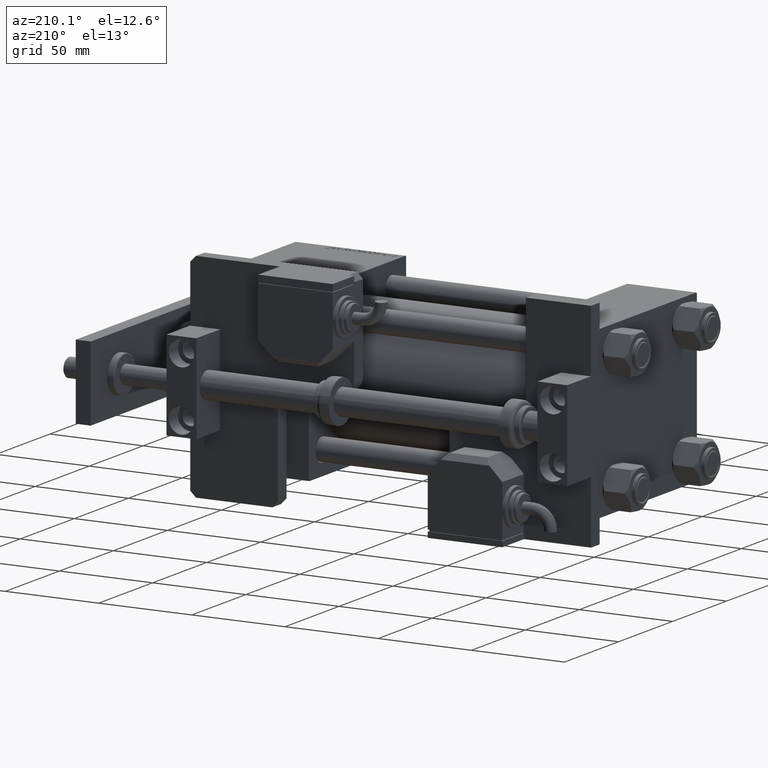
[diagram: clean part render]
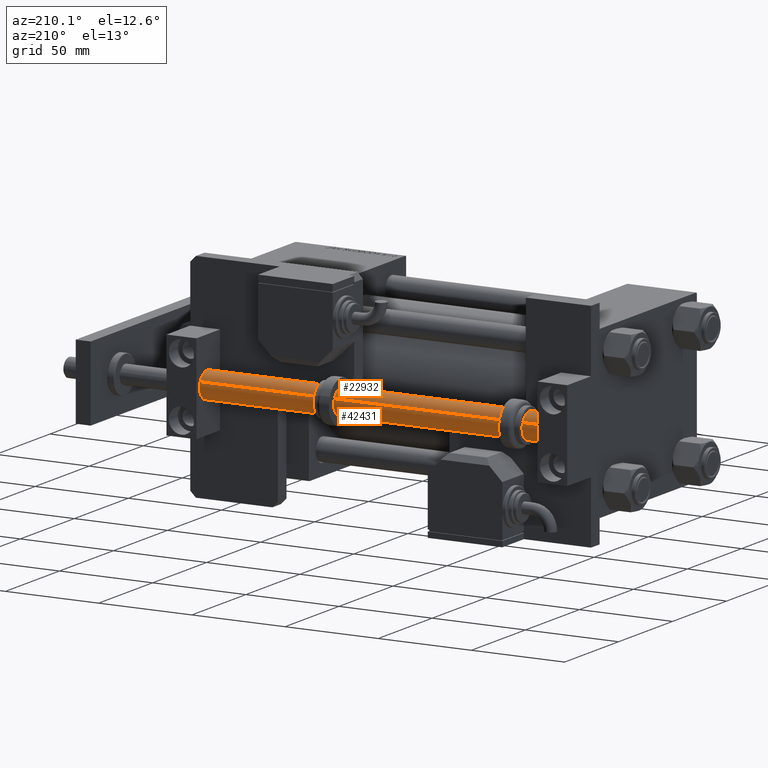
[diagram: same view with one multi-face feature highlighted, each face labeled with its STEP entity id]
A machine part, auxiliary view. The highlighted faces form ONE feature: a constant-radius fillet chain: 2 tangent blend faces with common blend radius 7 mm. The faces share edges in the B-rep.
Their STEP definitions:
[1] entity #22932 (Cylinder):
#1186 = ORIENTED_EDGE ( 'NONE', *, *, #8624, .F. ) ;
#4401 = DIRECTION ( 'NONE',  ( 1.000000000000000000, 0.000000000000000000, 0.000000000000000000 ) ) ;
#4670 = CARTESIAN_POINT ( 'NONE',  ( 0.000000000000000000, 0.000000000000000000, 215.0000000000000000 ) ) ;
#6527 = AXIS2_PLACEMENT_3D ( 'NONE', #4670, #39169, #4401 ) ;
#6586 = CARTESIAN_POINT ( 'NONE',  ( 0.000000000000000000, 0.000000000000000000, 215.0000000000000000 ) ) ;
#6798 = CARTESIAN_POINT ( 'NONE',  ( -7.000000000000000000, 0.000000000000000000, 215.0000000000000000 ) ) ;
#7639 = DIRECTION ( 'NONE',  ( -0.000000000000000000, -0.000000000000000000, -1.000000000000000000 ) ) ;
#7795 = CARTESIAN_POINT ( 'NONE',  ( 7.000000000000000000, 8.572527594031473190E-16, 0.2999999999999947153 ) ) ;
#8116 = ORIENTED_EDGE ( 'NONE', *, *, #53200, .F. ) ;
#8624 = EDGE_CURVE ( 'NONE', #32189, #38328, #29581, .T. ) ;
#9934 = VERTEX_POINT ( 'NONE', #26661 ) ;
#11297 = VERTEX_POINT ( 'NONE', #37730 ) ;
#12396 = CIRCLE ( 'NONE', #22194, 7.000000000000000000 ) ;
#15632 = DIRECTION ( 'NONE',  ( -1.000000000000000000, 0.000000000000000000, 0.000000000000000000 ) ) ;
#19582 = CYLINDRICAL_SURFACE ( 'NONE', #38603, 7.000000000000000000 ) ;
#22194 = AXIS2_PLACEMENT_3D ( 'NONE', #50959, #26334, #38511 ) ;
#22932 = ADVANCED_FACE ( 'NONE', ( #44493 ), #19582, .T. ) ;
#23127 = EDGE_CURVE ( 'NONE', #11297, #38328, #12396, .T. ) ;
#23569 = ORIENTED_EDGE ( 'NONE', *, *, #55455, .T. ) ;
#26334 = DIRECTION ( 'NONE',  ( -0.000000000000000000, -0.000000000000000000, 1.000000000000000000 ) ) ;
#26661 = CARTESIAN_POINT ( 'NONE',  ( -7.000000000000000000, 0.000000000000000000, 215.0000000000000000 ) ) ;
#28075 = DIRECTION ( 'NONE',  ( -0.000000000000000000, -0.000000000000000000, -1.000000000000000000 ) ) ;
#29016 = EDGE_LOOP ( 'NONE', ( #1186, #8116, #23569, #45002 ) ) ;
#29581 = LINE ( 'NONE', #38622, #30062 ) ;
#30062 = VECTOR ( 'NONE', #47119, 1000.000000000000000 ) ;
#30127 = VECTOR ( 'NONE', #7639, 1000.000000000000000 ) ;
#30911 = CIRCLE ( 'NONE', #6527, 7.000000000000000000 ) ;
#32189 = VERTEX_POINT ( 'NONE', #32299 ) ;
#32299 = CARTESIAN_POINT ( 'NONE',  ( 7.000000000000000000, 8.572527594031473190E-16, 215.0000000000000000 ) ) ;
#37730 = CARTESIAN_POINT ( 'NONE',  ( -7.000000000000000000, 0.000000000000000000, 0.2999999999999947153 ) ) ;
#38328 = VERTEX_POINT ( 'NONE', #7795 ) ;
#38511 = DIRECTION ( 'NONE',  ( 1.000000000000000000, 0.000000000000000000, 0.000000000000000000 ) ) ;
#38603 = AXIS2_PLACEMENT_3D ( 'NONE', #6586, #28075, #15632 ) ;
#38622 = CARTESIAN_POINT ( 'NONE',  ( 7.000000000000000000, 8.572527594031473190E-16, 215.0000000000000000 ) ) ;
#39169 = DIRECTION ( 'NONE',  ( 0.000000000000000000, 0.000000000000000000, 1.000000000000000000 ) ) ;
#44493 = FACE_OUTER_BOUND ( 'NONE', #29016, .T. ) ;
#45002 = ORIENTED_EDGE ( 'NONE', *, *, #23127, .T. ) ;
#47119 = DIRECTION ( 'NONE',  ( -0.000000000000000000, -0.000000000000000000, -1.000000000000000000 ) ) ;
#50959 = CARTESIAN_POINT ( 'NONE',  ( 0.000000000000000000, 0.000000000000000000, 0.2999999999999947153 ) ) ;
#53200 = EDGE_CURVE ( 'NONE', #9934, #32189, #30911, .T. ) ;
#54860 = LINE ( 'NONE', #6798, #30127 ) ;
#55455 = EDGE_CURVE ( 'NONE', #9934, #11297, #54860, .T. ) ;
[2] entity #42431 (Cylinder):
#949 = DIRECTION ( 'NONE',  ( -0.000000000000000000, -0.000000000000000000, 1.000000000000000000 ) ) ;
#5158 = CARTESIAN_POINT ( 'NONE',  ( 0.000000000000000000, 0.000000000000000000, 215.0000000000000000 ) ) ;
#5706 = CYLINDRICAL_SURFACE ( 'NONE', #54098, 7.000000000000000000 ) ;
#6798 = CARTESIAN_POINT ( 'NONE',  ( -7.000000000000000000, 0.000000000000000000, 215.0000000000000000 ) ) ;
#7530 = EDGE_CURVE ( 'NONE', #32189, #9934, #15732, .T. ) ;
#7554 = ORIENTED_EDGE ( 'NONE', *, *, #37470, .T. ) ;
#7639 = DIRECTION ( 'NONE',  ( -0.000000000000000000, -0.000000000000000000, -1.000000000000000000 ) ) ;
#7795 = CARTESIAN_POINT ( 'NONE',  ( 7.000000000000000000, 8.572527594031473190E-16, 0.2999999999999947153 ) ) ;
#8624 = EDGE_CURVE ( 'NONE', #32189, #38328, #29581, .T. ) ;
#9934 = VERTEX_POINT ( 'NONE', #26661 ) ;
#10810 = ORIENTED_EDGE ( 'NONE', *, *, #8624, .T. ) ;
#11297 = VERTEX_POINT ( 'NONE', #37730 ) ;
#13630 = CARTESIAN_POINT ( 'NONE',  ( 0.000000000000000000, 0.000000000000000000, 215.0000000000000000 ) ) ;
#13914 = FACE_OUTER_BOUND ( 'NONE', #46817, .T. ) ;
#15061 = ORIENTED_EDGE ( 'NONE', *, *, #7530, .F. ) ;
#15732 = CIRCLE ( 'NONE', #54762, 7.000000000000000000 ) ;
#22950 = DIRECTION ( 'NONE',  ( 0.000000000000000000, 0.000000000000000000, 1.000000000000000000 ) ) ;
#26661 = CARTESIAN_POINT ( 'NONE',  ( -7.000000000000000000, 0.000000000000000000, 215.0000000000000000 ) ) ;
#29581 = LINE ( 'NONE', #38622, #30062 ) ;
#30062 = VECTOR ( 'NONE', #47119, 1000.000000000000000 ) ;
#30127 = VECTOR ( 'NONE', #7639, 1000.000000000000000 ) ;
#31159 = DIRECTION ( 'NONE',  ( -1.000000000000000000, 0.000000000000000000, 0.000000000000000000 ) ) ;
#31326 = AXIS2_PLACEMENT_3D ( 'NONE', #39986, #949, #36296 ) ;
#32189 = VERTEX_POINT ( 'NONE', #32299 ) ;
#32299 = CARTESIAN_POINT ( 'NONE',  ( 7.000000000000000000, 8.572527594031473190E-16, 215.0000000000000000 ) ) ;
#33567 = ORIENTED_EDGE ( 'NONE', *, *, #55455, .F. ) ;
#35398 = DIRECTION ( 'NONE',  ( -0.000000000000000000, -0.000000000000000000, -1.000000000000000000 ) ) ;
#36296 = DIRECTION ( 'NONE',  ( 1.000000000000000000, 0.000000000000000000, 0.000000000000000000 ) ) ;
#37470 = EDGE_CURVE ( 'NONE', #38328, #11297, #54825, .T. ) ;
#37730 = CARTESIAN_POINT ( 'NONE',  ( -7.000000000000000000, 0.000000000000000000, 0.2999999999999947153 ) ) ;
#38328 = VERTEX_POINT ( 'NONE', #7795 ) ;
#38622 = CARTESIAN_POINT ( 'NONE',  ( 7.000000000000000000, 8.572527594031473190E-16, 215.0000000000000000 ) ) ;
#39986 = CARTESIAN_POINT ( 'NONE',  ( 0.000000000000000000, 0.000000000000000000, 0.2999999999999947153 ) ) ;
#42431 = ADVANCED_FACE ( 'NONE', ( #13914 ), #5706, .T. ) ;
#45016 = DIRECTION ( 'NONE',  ( 1.000000000000000000, 0.000000000000000000, 0.000000000000000000 ) ) ;
#46817 = EDGE_LOOP ( 'NONE', ( #15061, #10810, #7554, #33567 ) ) ;
#47119 = DIRECTION ( 'NONE',  ( -0.000000000000000000, -0.000000000000000000, -1.000000000000000000 ) ) ;
#54098 = AXIS2_PLACEMENT_3D ( 'NONE', #13630, #35398, #31159 ) ;
#54762 = AXIS2_PLACEMENT_3D ( 'NONE', #5158, #22950, #45016 ) ;
#54825 = CIRCLE ( 'NONE', #31326, 7.000000000000000000 ) ;
#54860 = LINE ( 'NONE', #6798, #30127 ) ;
#55455 = EDGE_CURVE ( 'NONE', #9934, #11297, #54860, .T. ) ;